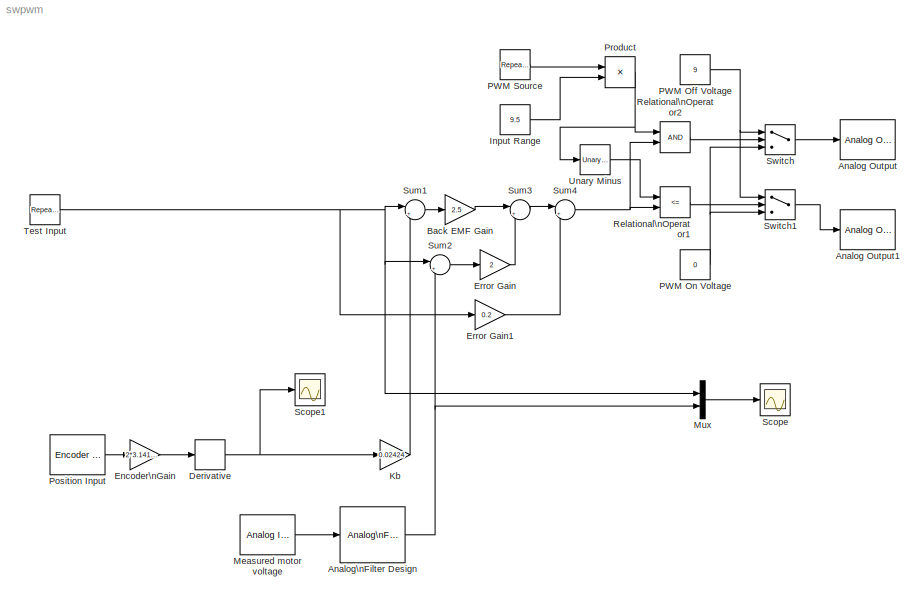
MODEL swpwm
KIND model
BLOCK [Reference] Analog Output  REF=rtwinlib/Analog Output
  AttributesFormatString = Sensoray\\nModel 626 [auto]
  Channels = 1
  DrvAddress = 4294967295
  DrvName = Sensoray/Model_626
  DrvOptions = zeros(1,0)
  FinalValue = []
  InitialValue = []
  Ports = [1]
  RangeMode = 1
  SampleTime = -1
  SourceBlock = rtwinlib/Analog Output
  SourceType = RTWin Analog Output
  VoltRange = 1
BLOCK [Reference] Analog Output1  REF=rtwinlib/Analog Output
  AttributesFormatString = Sensoray\\nModel 626 [auto]
  Channels = 2
  DrvAddress = 4294967295
  DrvName = Sensoray/Model_626
  DrvOptions = zeros(1,0)
  FinalValue = []
  InitialValue = []
  Ports = [1]
  RangeMode = 1
  SampleTime = -1
  SourceBlock = rtwinlib/Analog Output
  SourceType = RTWin Analog Output
  VoltRange = 1
BLOCK [Reference] Analog\nFilter Design  REF=dsparch4/Analog\nFilter Design
  N = 3
  Ports = [1, 1]
  Rp = 2
  Rs = 40
  SourceBlock = dsparch4/Analog\nFilter Design
  SourceType = Analog Filter Design
  Whi = 80
  Wlo = 100
  filttype = Lowpass
  method = Butterworth
BLOCK [Gain] Back EMF Gain
  Gain = 2.5
  OutDataType = sfix(16)
  OutDataTypeMode = Inherit via internal rule
  OutScaling = 2^0
  ParameterDataType = sfix(16)
  ParameterDataTypeMode = Inherit via internal rule
  ParameterScaling = 2^0
  SaturateOnIntegerOverflow = off
BLOCK [Derivative] Derivative
BLOCK [Gain] Encoder\nGain
  Gain = 2*3.141592/(500*4)
  OutDataType = sfix(16)
  OutDataTypeMode = Inherit via internal rule
  OutScaling = 2^0
  ParameterDataType = sfix(16)
  ParameterDataTypeMode = Inherit via internal rule
  ParameterScaling = 2^0
  SaturateOnIntegerOverflow = off
BLOCK [Gain] Error Gain
  Gain = 2
  OutDataType = sfix(16)
  OutDataTypeMode = Inherit via internal rule
  OutScaling = 2^0
  ParameterDataType = sfix(16)
  ParameterDataTypeMode = Inherit via internal rule
  ParameterScaling = 2^0
  SaturateOnIntegerOverflow = off
BLOCK [Gain] Error Gain1
  Gain = 0.2
  OutDataType = sfix(16)
  OutDataTypeMode = Inherit via internal rule
  OutScaling = 2^0
  ParameterDataType = sfix(16)
  ParameterDataTypeMode = Inherit via internal rule
  ParameterScaling = 2^0
  SaturateOnIntegerOverflow = off
BLOCK [Constant] Input Range
  OutDataType = sfix(16)
  OutScaling = 2^0
  Value = 9.5
BLOCK [Gain] Kb
  Gain = 0.02424
  OutDataType = sfix(16)
  OutDataTypeMode = Inherit via internal rule
  OutScaling = 2^0
  ParameterDataType = sfix(16)
  ParameterDataTypeMode = Inherit via internal rule
  ParameterScaling = 2^0
  SaturateOnIntegerOverflow = off
BLOCK [Reference] Measured motor voltage  REF=rtwinlib/Analog Input
  AttributesFormatString = Sensoray\\nModel 626 [auto]
  Channels = 1
  DataType = 1
  DrvAddress = 4294967295
  DrvName = Sensoray/Model_626
  DrvOptions = zeros(1,0)
  Ports = [0, 1]
  RangeMode = 1
  SampleTime = -1
  SourceBlock = rtwinlib/Analog Input
  SourceType = RTWin Analog Input
  VoltRange = 1
BLOCK [Mux] Mux
  DisplayOption = bar
  Inputs = 2
  Ports = [2, 1]
BLOCK [Constant] PWM Off Voltage
  OutDataType = sfix(16)
  OutScaling = 2^0
  Value = 9
BLOCK [Constant] PWM On Voltage
  OutDataType = sfix(16)
  OutScaling = 2^0
  Value = 0
BLOCK [Reference] PWM Source  REF=simulink/Sources/Repeating\nSequence
  FunctionWithSeparateData = off
  Ports = [0, 1]
  RTWMemSecDataConstants = Inherit from model
  RTWMemSecDataInternal = Inherit from model
  RTWMemSecDataParameters = Inherit from model
  RTWMemSecFuncExecute = Inherit from model
  RTWMemSecFuncInitTerm = Inherit from model
  ShowPortLabels = FromPortIcon
  SourceBlock = simulink/Sources/Repeating\nSequence
  SourceType = Repeating table
  SystemSampleTime = -1
  rep_seq_t = [0 0.01]
  rep_seq_y = [0 1]
BLOCK [Reference] Position Input  REF=rtwinlib/Encoder Input
  AttributesFormatString = Sensoray\\nModel 626 [auto]
  Channels = [4]
  DataType = 1
  DrvAddress = 4294967295
  DrvName = Sensoray/Model_626
  DrvOptions = zeros(1,0)
  IndexPulse = 2
  InputFilter = Inf
  Ports = [0, 1]
  QuadMode = 3
  SampleTime = -1
  SourceBlock = rtwinlib/Encoder Input
  SourceType = RTWin Encoder Input
BLOCK [Product] Product
  CollapseMode = All dimensions
  InputSameDT = off
  OutDataType = sfix(16)
  OutDataTypeMode = Inherit via internal rule
  OutScaling = 2^0
  Ports = [2, 1]
  SaturateOnIntegerOverflow = off
BLOCK [RelationalOperator] Relational\nOperator1
  InputSameDT = off
  LogicOutDataTypeMode = boolean
  Operator = <=
BLOCK [RelationalOperator] Relational\nOperator2
  InputSameDT = off
  LogicOutDataTypeMode = boolean
BLOCK [Scope] Scope
  DataFormat = StructureWithTime
  Floating = off
  MaxDataPoints = 60000
  NumInputPorts = 1
  Ports = [1]
  SampleTime = 0
  TimeRange = 60
  YMax = 10
  YMin = -10
BLOCK [Scope] Scope1
  DataFormat = StructureWithTime
  Floating = off
  MaxDataPoints = 60000
  NumInputPorts = 1
  Ports = [1]
  SampleTime = 0
  SaveName = ScopeData1
  TimeRange = 60
  YMax = 17.5
  YMin = -32.5
BLOCK [Sum] Sum1
  CollapseMode = All dimensions
  IconShape = round
  InputSameDT = off
  Inputs = |+-
  OutDataType = sfix(16)
  OutDataTypeMode = Inherit via internal rule
  OutScaling = 2^0
  Ports = [2, 1]
  SaturateOnIntegerOverflow = off
BLOCK [Sum] Sum2
  CollapseMode = All dimensions
  IconShape = round
  InputSameDT = off
  Inputs = |+-
  OutDataType = sfix(16)
  OutDataTypeMode = Inherit via internal rule
  OutScaling = 2^0
  Ports = [2, 1]
  SaturateOnIntegerOverflow = off
BLOCK [Sum] Sum3
  CollapseMode = All dimensions
  IconShape = round
  InputSameDT = off
  Inputs = |++
  OutDataType = sfix(16)
  OutDataTypeMode = Inherit via internal rule
  OutScaling = 2^0
  Ports = [2, 1]
  SaturateOnIntegerOverflow = off
BLOCK [Sum] Sum4
  CollapseMode = All dimensions
  IconShape = round
  InputSameDT = off
  Inputs = |++
  OutDataType = sfix(16)
  OutDataTypeMode = Inherit via internal rule
  OutScaling = 2^0
  Ports = [2, 1]
  SaturateOnIntegerOverflow = off
BLOCK [Switch] Switch
  InputSameDT = off
  OutDataType = sfix(16)
  OutScaling = 2^0
  SaturateOnIntegerOverflow = off
BLOCK [Switch] Switch1
  InputSameDT = off
  OutDataType = sfix(16)
  OutScaling = 2^0
  SaturateOnIntegerOverflow = off
BLOCK [Reference] Test Input  REF=simulink/Sources/Repeating\nSequence
  FunctionWithSeparateData = off
  Ports = [0, 1]
  RTWMemSecDataConstants = Inherit from model
  RTWMemSecDataInternal = Inherit from model
  RTWMemSecDataParameters = Inherit from model
  RTWMemSecFuncExecute = Inherit from model
  RTWMemSecFuncInitTerm = Inherit from model
  ShowPortLabels = FromPortIcon
  SourceBlock = simulink/Sources/Repeating\nSequence
  SourceType = Repeating table
  SystemSampleTime = -1
  rep_seq_t = [0 1 10 15 20 25 30 31 40 45 50 55 58 60]
  rep_seq_y = [0 0 5 5 9.5 9.5 0 0 -5 -5 -9.5 -9.5 0 0]
BLOCK [Reference] Unary Minus  REF=simulink/Math\nOperations/Unary Minus
  DoSatur = off
  Ports = [1, 1]
  SourceBlock = simulink/Math\nOperations/Unary Minus
  SourceType = Unary Minus
NET Analog\nFilter Design:1 -> Mux:2, Sum2:2
LINE Back EMF Gain:1 -> Sum3:1
NET Derivative:1 -> Kb:1, Scope1:1
LINE Encoder\nGain:1 -> Derivative:1
LINE Error Gain1:1 -> Sum4:2
LINE Error Gain:1 -> Sum3:2
LINE Input Range:1 -> Product:2
LINE Kb:1 -> Sum1:2
LINE Measured motor voltage:1 -> Analog\nFilter Design:1
LINE Mux:1 -> Scope:1
NET PWM Off Voltage:1 -> Switch1:1, Switch:1
NET PWM On Voltage:1 -> Switch1:3, Switch:3
LINE PWM Source:1 -> Product:1
LINE Position Input:1 -> Encoder\nGain:1
NET Product:1 -> Relational\nOperator2:1, Unary Minus:1
LINE Relational\nOperator1:1 -> Switch1:2
LINE Relational\nOperator2:1 -> Switch:2
LINE Sum1:1 -> Back EMF Gain:1
LINE Sum2:1 -> Error Gain:1
LINE Sum3:1 -> Sum4:1
NET Sum4:1 -> Relational\nOperator1:2, Relational\nOperator2:2
LINE Switch1:1 -> Analog Output1:1
LINE Switch:1 -> Analog Output:1
NET Test Input:1 -> Error Gain1:1, Mux:1, Sum1:1, Sum2:1
LINE Unary Minus:1 -> Relational\nOperator1:1
note: NET lines group one-source signal fan-out (src -> all destinations, sorted); 1:1 wires keep LINE
